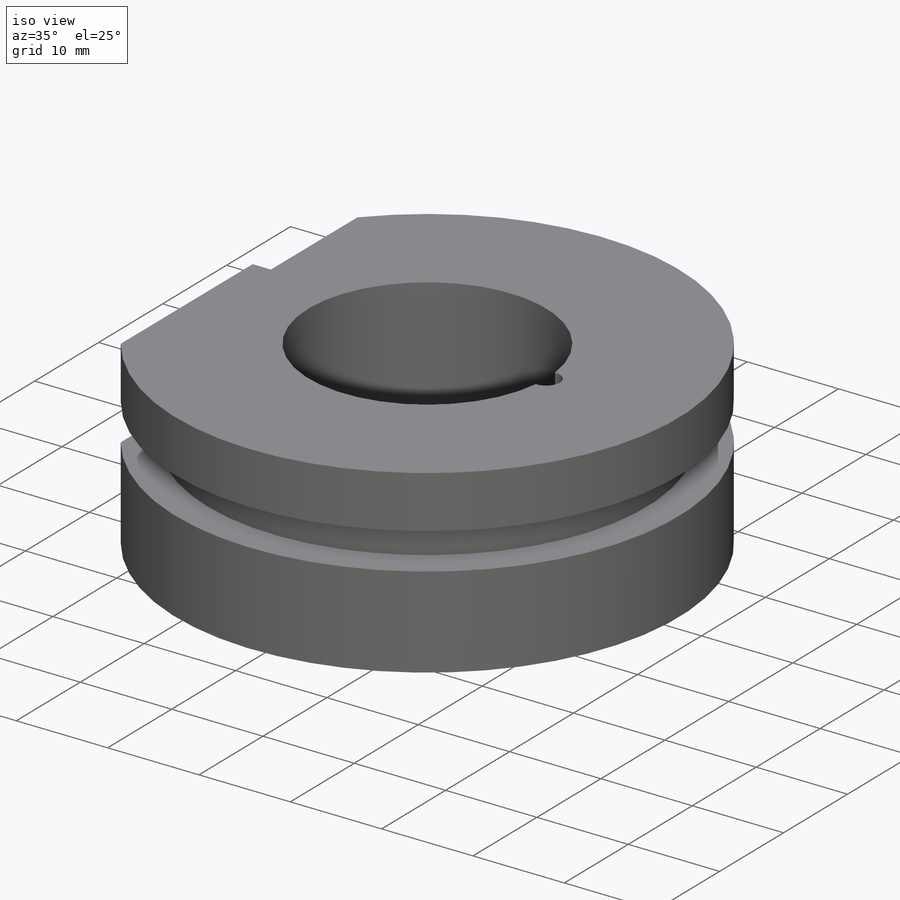
[diagram: iso view]
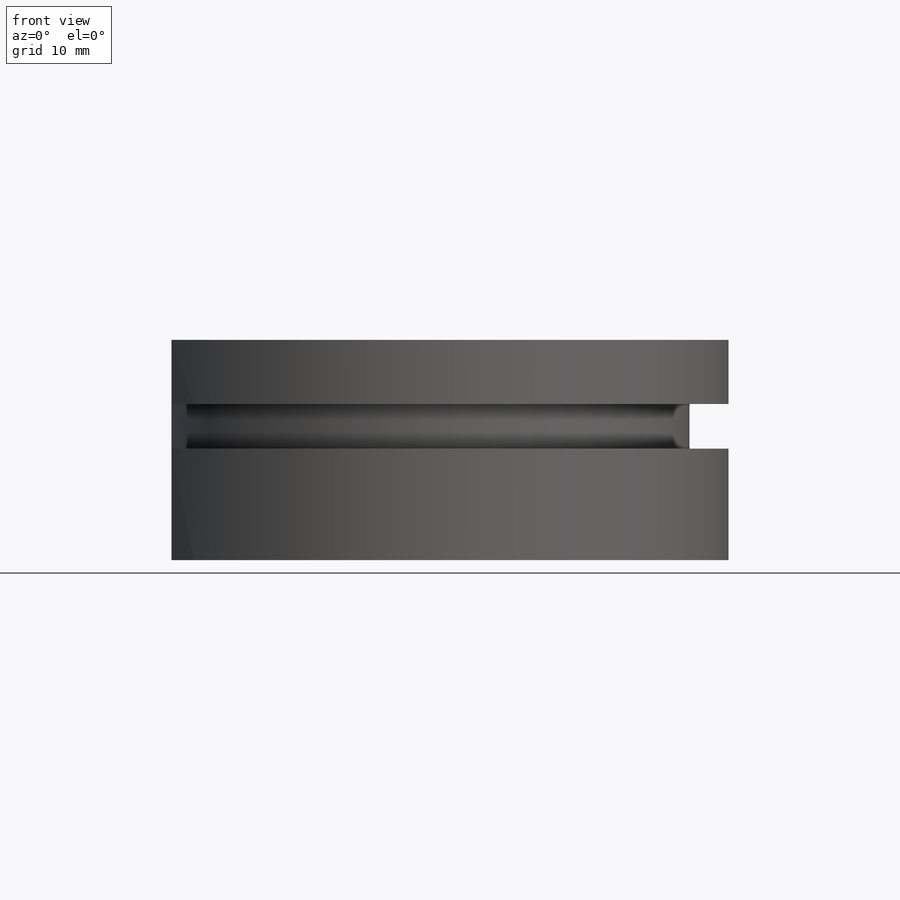
[diagram: front view]
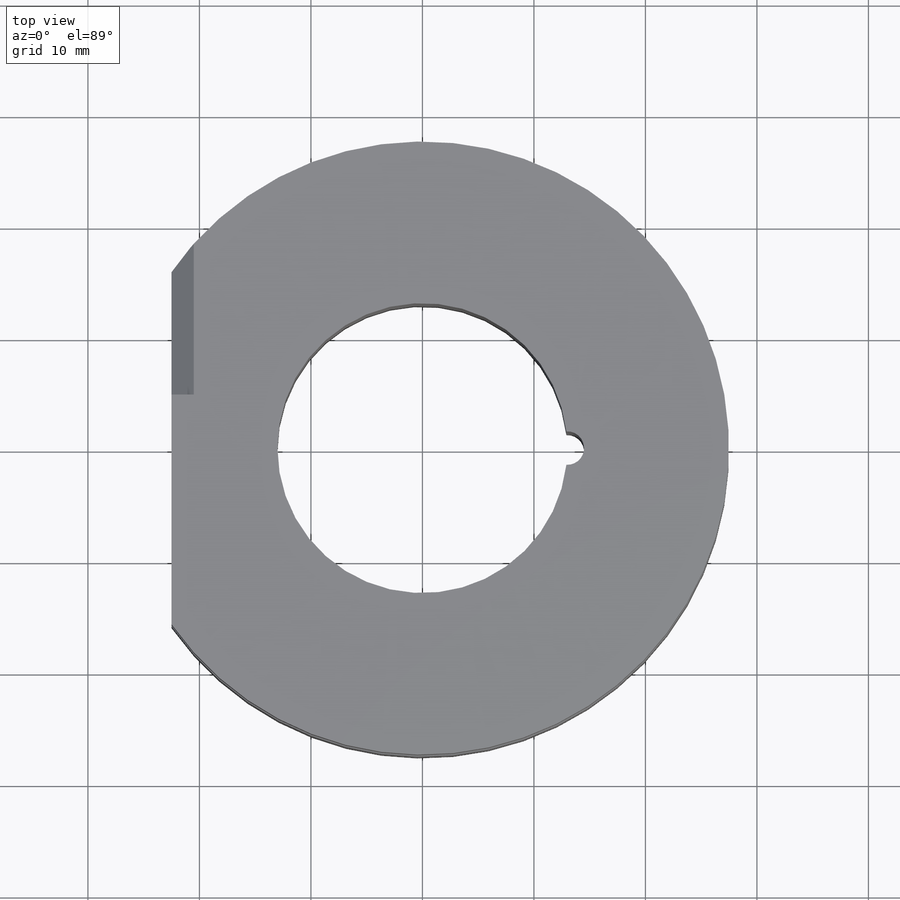
[diagram: top view]
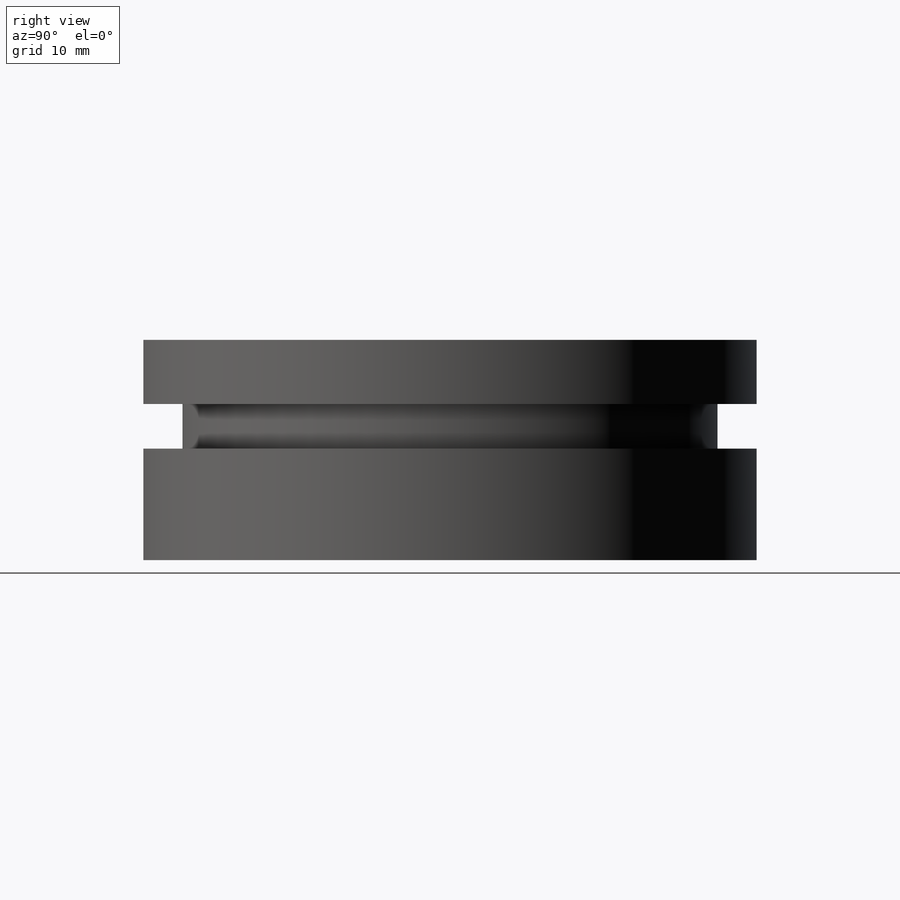
[diagram: right view]
SOLIDWORKS PART (.sldprt)
format: sldprt  version: not decoded by parser v0  size: 182,272 bytes
history: native  units: mm
features: sketch x5, plane x4, cut_extrude x3, material x1, extrude x1, cut_revolve x1 (+8 scaffold rows collapsed)
feature tree (23):
  scaffold x8  (default folders/planes/origin — collapsed)
  material  "АЛ8Т4 ГОСТ 1583-93"
  plane  "Спереди"
  plane  "Сверху"
  plane  "Справа"
  sketch  "Эскиз1"  dims[D1=55.0mm D2=50.0mm]
  extrude  "Бобышка-Вытянуть1"  Depth=19.75mm
  sketch  "Эскиз2"  dims[D1=26.0mm]
  cut_extrude  "Вырез-Вытянуть2"  [1 undecoded]
  sketch  "Эскиз3"  dims[D1=10.0mm D2=4.0mm D3=24.0mm D4=5.0mm]
  cut_revolve  "Вырез-Повернуть1"  Angle=360deg
  sketch  "Эскиз4"  dims[D1=3.0mm D2=13.0mm]
  cut_extrude  "Вырез-Вытянуть3"  [1 undecoded]
  plane  "Плоскость1"  Offset=4.81mm
  sketch  "Эскиз5"  dims[D1=2.0mm D2=2.0mm]
  cut_extrude  "Вырез-Вытянуть4"  [1 undecoded]
decode coverage: 7 of 10 modeling features carry decoded parameters
note: 3 parameter values undecoded
summary: no parameter record found for 3 features
note: suppression state not decoded; provenance and decode notes live in map.json
